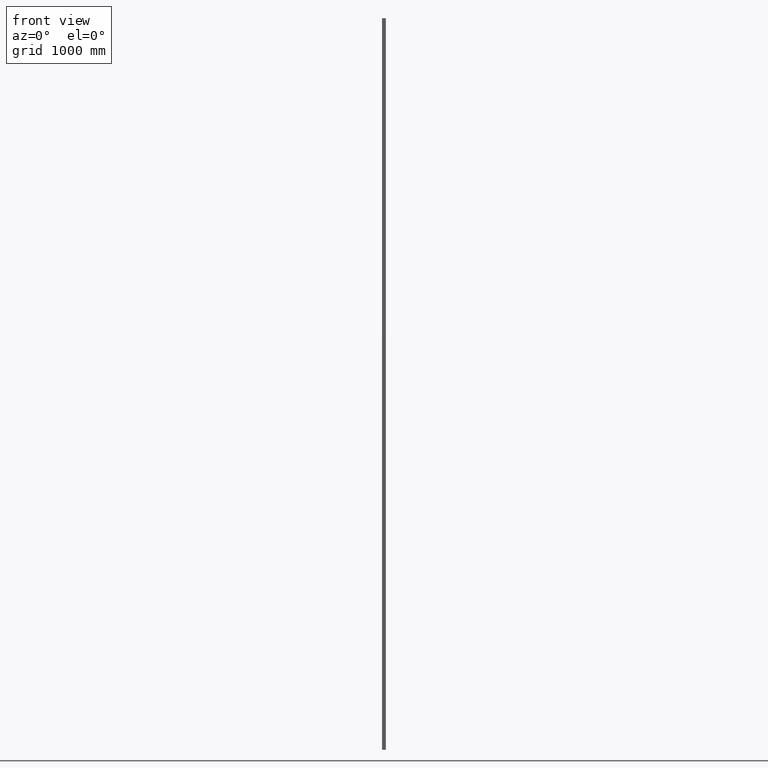
[diagram: clean part render]
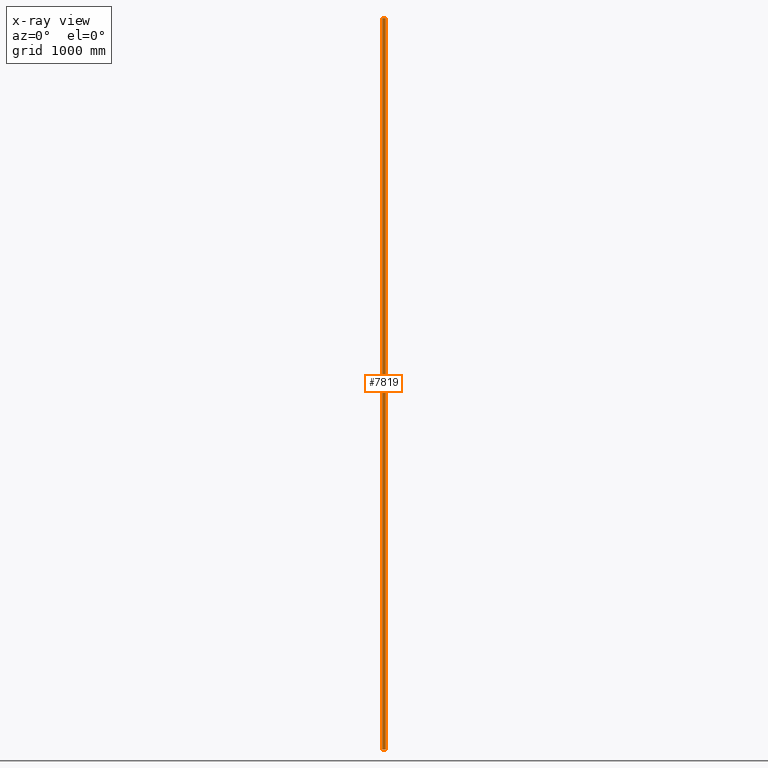
[diagram: x-ray — body ghosted, one internal face saturated and labeled with its STEP entity id]
A machine part, front view, then the same camera in x-ray: the body is ghosted and one INTERNAL B-rep face — a face not visible from any outside direction — is saturated and labeled: STEP entity #7819.
In plain terms, the highlighted planar face has unit normal (0, -1, 0).
Its self-contained STEP definition (entity closure, byte-faithful):
#1596 = VERTEX_POINT ( 'NONE', #13254 ) ;
#1650 = ORIENTED_EDGE ( 'NONE', *, *, #4531, .F. ) ;
#1890 = LINE ( 'NONE', #6505, #10329 ) ;
#4175 = EDGE_LOOP ( 'NONE', ( #9859, #1650, #12015, #7591 ) ) ;
#4341 = VERTEX_POINT ( 'NONE', #5491 ) ;
#4516 = FACE_OUTER_BOUND ( 'NONE', #4175, .T. ) ;
#4531 = EDGE_CURVE ( 'NONE', #11593, #8991, #5289, .T. ) ;
#4899 = VECTOR ( 'NONE', #12356, 1000.000000000000000 ) ;
#5289 = LINE ( 'NONE', #8051, #13931 ) ;
#5301 = CARTESIAN_POINT ( 'NONE',  ( -11.99999999999999289, 14.99999999999999645, 3000.000000000000000 ) ) ;
#5491 = CARTESIAN_POINT ( 'NONE',  ( 12.00000000000000000, 14.99999999999999645, -3000.000000000000000 ) ) ;
#5539 = VECTOR ( 'NONE', #12256, 1000.000000000000000 ) ;
#6232 = EDGE_CURVE ( 'NONE', #4341, #8991, #1890, .T. ) ;
#6505 = CARTESIAN_POINT ( 'NONE',  ( -11.99999999999999289, 14.99999999999999645, -3000.000000000000000 ) ) ;
#7432 = CARTESIAN_POINT ( 'NONE',  ( 12.00000000000000000, 14.99999999999999645, 3000.000000000000000 ) ) ;
#7591 = ORIENTED_EDGE ( 'NONE', *, *, #15115, .T. ) ;
#7675 = EDGE_CURVE ( 'NONE', #1596, #11593, #15607, .T. ) ;
#7783 = LINE ( 'NONE', #7432, #5539 ) ;
#7819 = ADVANCED_FACE ( 'NONE', ( #4516 ), #15213, .F. ) ;
#8051 = CARTESIAN_POINT ( 'NONE',  ( -11.99999999999999289, 14.99999999999999645, 3000.000000000000000 ) ) ;
#8169 = CARTESIAN_POINT ( 'NONE',  ( -11.99999999999999289, 14.99999999999999645, 3000.000000000000000 ) ) ;
#8991 = VERTEX_POINT ( 'NONE', #13497 ) ;
#9544 = CARTESIAN_POINT ( 'NONE',  ( -11.99999999999999289, 14.99999999999999645, 3000.000000000000000 ) ) ;
#9859 = ORIENTED_EDGE ( 'NONE', *, *, #6232, .T. ) ;
#9957 = AXIS2_PLACEMENT_3D ( 'NONE', #8169, #14117, #14066 ) ;
#10329 = VECTOR ( 'NONE', #13858, 1000.000000000000000 ) ;
#10778 = DIRECTION ( 'NONE',  ( -0.000000000000000000, -0.000000000000000000, -1.000000000000000000 ) ) ;
#11593 = VERTEX_POINT ( 'NONE', #9544 ) ;
#12015 = ORIENTED_EDGE ( 'NONE', *, *, #7675, .F. ) ;
#12256 = DIRECTION ( 'NONE',  ( -0.000000000000000000, -0.000000000000000000, -1.000000000000000000 ) ) ;
#12356 = DIRECTION ( 'NONE',  ( -1.000000000000000000, -0.000000000000000000, -0.000000000000000000 ) ) ;
#13254 = CARTESIAN_POINT ( 'NONE',  ( 12.00000000000000000, 14.99999999999999645, 3000.000000000000000 ) ) ;
#13497 = CARTESIAN_POINT ( 'NONE',  ( -11.99999999999999289, 14.99999999999999645, -3000.000000000000000 ) ) ;
#13858 = DIRECTION ( 'NONE',  ( -1.000000000000000000, -0.000000000000000000, -0.000000000000000000 ) ) ;
#13931 = VECTOR ( 'NONE', #10778, 1000.000000000000000 ) ;
#14066 = DIRECTION ( 'NONE',  ( 0.000000000000000000, -0.000000000000000000, -1.000000000000000000 ) ) ;
#14117 = DIRECTION ( 'NONE',  ( 0.000000000000000000, -1.000000000000000000, 0.000000000000000000 ) ) ;
#15115 = EDGE_CURVE ( 'NONE', #1596, #4341, #7783, .T. ) ;
#15213 = PLANE ( 'NONE',  #9957 ) ;
#15607 = LINE ( 'NONE', #5301, #4899 ) ;